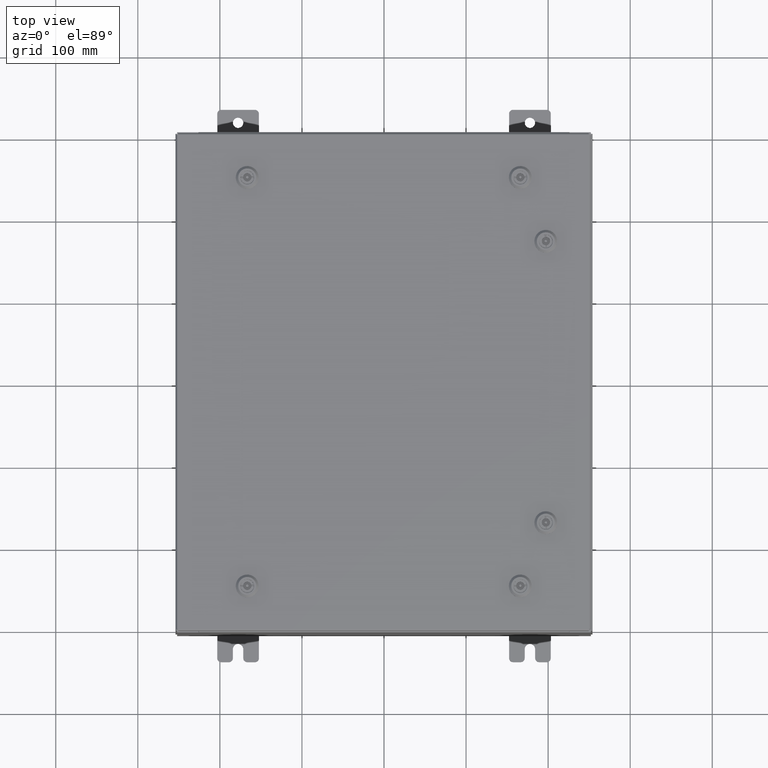
[diagram: clean part render]
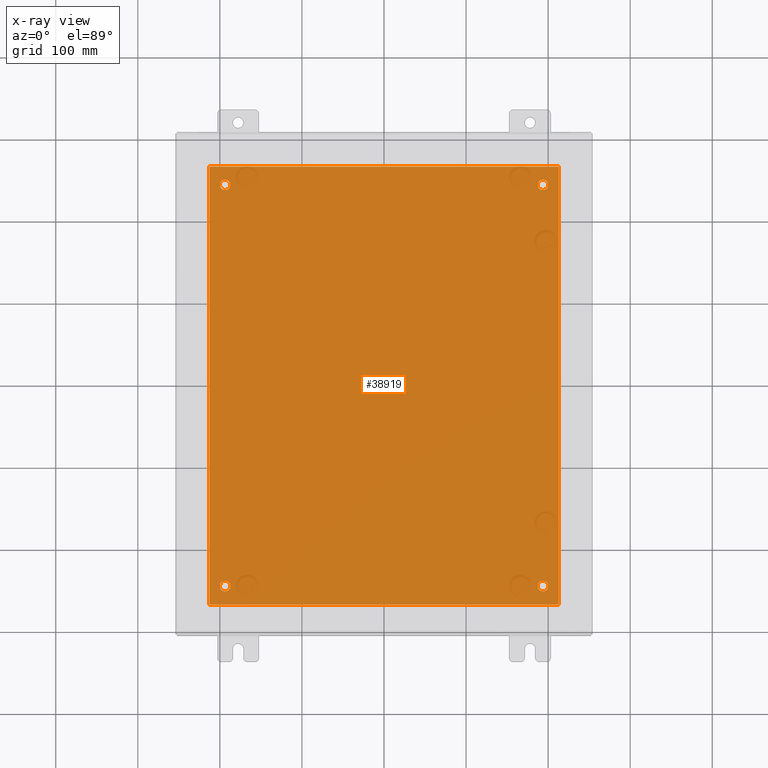
[diagram: x-ray — body ghosted, one internal face saturated and labeled with its STEP entity id]
A machine part, top view, then the same camera in x-ray: the body is ghosted and one INTERNAL B-rep face — a face not visible from any outside direction — is saturated and labeled: STEP entity #38919.
In plain terms, the highlighted planar face has unit normal (0, 0, -1).
Its self-contained STEP definition (entity closure, byte-faithful):
#570 = EDGE_CURVE ( 'NONE', #48124, #41167, #20640, .T. ) ;
#1003 = DIRECTION ( 'NONE',  ( -0.0000000000000000000, -0.0000000000000000000, 1.000000000000000000 ) ) ;
#2169 = FACE_OUTER_BOUND ( 'NONE', #4934, .T. ) ;
#2530 = CARTESIAN_POINT ( 'NONE',  ( -8.383000000000002700, 10.50000000000000200, -0.1039999999999998100 ) ) ;
#2738 = VERTEX_POINT ( 'NONE', #62818 ) ;
#3512 = AXIS2_PLACEMENT_3D ( 'NONE', #41570, #12239, #46522 ) ;
#4291 = ORIENTED_EDGE ( 'NONE', *, *, #34516, .T. ) ;
#4617 = EDGE_LOOP ( 'NONE', ( #4291, #27446 ) ) ;
#4934 = EDGE_LOOP ( 'NONE', ( #21158, #60504, #6108, #55080 ) ) ;
#5246 = EDGE_CURVE ( 'NONE', #24341, #48124, #21398, .T. ) ;
#6108 = ORIENTED_EDGE ( 'NONE', *, *, #6360, .F. ) ;
#6360 = EDGE_CURVE ( 'NONE', #41167, #14637, #47408, .T. ) ;
#6496 = CARTESIAN_POINT ( 'NONE',  ( 7.625000000000004400, -9.625000000000001800, -0.1039999999999999800 ) ) ;
#6788 = DIRECTION ( 'NONE',  ( -1.000000000000000000, 0.0000000000000000000, -0.0000000000000000000 ) ) ;
#7074 = EDGE_CURVE ( 'NONE', #2738, #55004, #7495, .T. ) ;
#7495 = CIRCLE ( 'NONE', #47217, 0.2499999999999987000 ) ;
#9644 = CARTESIAN_POINT ( 'NONE',  ( 8.382999999999999100, -10.50000000000000000, -0.1039999999999999800 ) ) ;
#10353 = CARTESIAN_POINT ( 'NONE',  ( 8.382999999999999100, -10.50000000000000200, -0.1039999999999998100 ) ) ;
#11430 = DIRECTION ( 'NONE',  ( -1.000000000000000000, 0.0000000000000000000, 0.0000000000000000000 ) ) ;
#11841 = DIRECTION ( 'NONE',  ( 0.0000000000000000000, 1.000000000000000000, 0.0000000000000000000 ) ) ;
#12239 = DIRECTION ( 'NONE',  ( -0.0000000000000000000, -0.0000000000000000000, 1.000000000000000000 ) ) ;
#12776 = EDGE_LOOP ( 'NONE', ( #35586, #22770 ) ) ;
#13023 = DIRECTION ( 'NONE',  ( -0.0000000000000000000, -0.0000000000000000000, 1.000000000000000000 ) ) ;
#14206 = CARTESIAN_POINT ( 'NONE',  ( -7.375000000000004400, -9.625000000000001800, -0.1039999999999999800 ) ) ;
#14637 = VERTEX_POINT ( 'NONE', #2530 ) ;
#14740 = VERTEX_POINT ( 'NONE', #27776 ) ;
#14816 = CARTESIAN_POINT ( 'NONE',  ( -8.500000000000001800, -10.50000000000000000, -0.1039999999999999800 ) ) ;
#15168 = FACE_BOUND ( 'NONE', #55344, .T. ) ;
#15970 = ORIENTED_EDGE ( 'NONE', *, *, #34595, .T. ) ;
#16479 = ORIENTED_EDGE ( 'NONE', *, *, #44733, .T. ) ;
#18797 = EDGE_CURVE ( 'NONE', #14637, #24341, #42804, .T. ) ;
#19184 = EDGE_CURVE ( 'NONE', #55004, #2738, #33583, .T. ) ;
#19908 = CIRCLE ( 'NONE', #54654, 0.2499999999999987000 ) ;
#20026 = CIRCLE ( 'NONE', #33436, 0.2499999999999987000 ) ;
#20640 = LINE ( 'NONE', #10353, #45185 ) ;
#21158 = ORIENTED_EDGE ( 'NONE', *, *, #5246, .F. ) ;
#21398 = LINE ( 'NONE', #14816, #32893 ) ;
#22470 = CIRCLE ( 'NONE', #37826, 0.2499999999999998100 ) ;
#22624 = VERTEX_POINT ( 'NONE', #14206 ) ;
#22682 = CARTESIAN_POINT ( 'NONE',  ( -7.875000000000003600, 9.625000000000001800, -0.1039999999999999800 ) ) ;
#22770 = ORIENTED_EDGE ( 'NONE', *, *, #61257, .T. ) ;
#24341 = VERTEX_POINT ( 'NONE', #27346 ) ;
#25211 = CARTESIAN_POINT ( 'NONE',  ( -7.375000000000004400, 9.625000000000001800, -0.1039999999999999800 ) ) ;
#26047 = CARTESIAN_POINT ( 'NONE',  ( -7.625000000000004400, 9.625000000000001800, -0.1039999999999999800 ) ) ;
#26291 = PLANE ( 'NONE',  #48380 ) ;
#26429 = VERTEX_POINT ( 'NONE', #29640 ) ;
#26784 = CARTESIAN_POINT ( 'NONE',  ( -7.625000000000004400, 9.625000000000001800, -0.1039999999999999800 ) ) ;
#27346 = CARTESIAN_POINT ( 'NONE',  ( -8.383000000000002700, -10.50000000000000000, -0.1039999999999998100 ) ) ;
#27446 = ORIENTED_EDGE ( 'NONE', *, *, #30785, .T. ) ;
#27776 = CARTESIAN_POINT ( 'NONE',  ( 7.375000000000005300, -9.625000000000001800, -0.1039999999999999800 ) ) ;
#27857 = CARTESIAN_POINT ( 'NONE',  ( 7.625000000000004400, 9.625000000000001800, -0.1039999999999999800 ) ) ;
#28047 = ORIENTED_EDGE ( 'NONE', *, *, #7074, .T. ) ;
#28189 = FACE_BOUND ( 'NONE', #4617, .T. ) ;
#28563 = CARTESIAN_POINT ( 'NONE',  ( -7.625000000000004400, -9.625000000000001800, -0.1039999999999999800 ) ) ;
#29163 = CARTESIAN_POINT ( 'NONE',  ( -8.383000000000002700, 10.50000000000000400, -0.1039999999999998100 ) ) ;
#29338 = VERTEX_POINT ( 'NONE', #25211 ) ;
#29640 = CARTESIAN_POINT ( 'NONE',  ( -7.875000000000003600, -9.625000000000001800, -0.1039999999999999800 ) ) ;
#29742 = FACE_BOUND ( 'NONE', #36532, .T. ) ;
#30323 = CARTESIAN_POINT ( 'NONE',  ( 7.625000000000004400, -9.625000000000001800, -0.1039999999999999800 ) ) ;
#30721 = CARTESIAN_POINT ( 'NONE',  ( 7.875000000000002700, -9.625000000000001800, -0.1039999999999999800 ) ) ;
#30785 = EDGE_CURVE ( 'NONE', #14740, #52762, #19908, .T. ) ;
#30976 = DIRECTION ( 'NONE',  ( -1.000000000000000000, 0.0000000000000000000, 0.0000000000000000000 ) ) ;
#31216 = CARTESIAN_POINT ( 'NONE',  ( 0.0000000000000000000, 0.0000000000000000000, -0.1039999999999999800 ) ) ;
#31704 = DIRECTION ( 'NONE',  ( -1.000000000000000000, 0.0000000000000000000, 0.0000000000000000000 ) ) ;
#32806 = DIRECTION ( 'NONE',  ( -1.000000000000000000, 0.0000000000000000000, 0.0000000000000000000 ) ) ;
#32893 = VECTOR ( 'NONE', #49133, 39.37007874015748100 ) ;
#33436 = AXIS2_PLACEMENT_3D ( 'NONE', #30323, #1003, #35280 ) ;
#33491 = DIRECTION ( 'NONE',  ( -1.000000000000000000, 0.0000000000000000000, 0.0000000000000000000 ) ) ;
#33583 = CIRCLE ( 'NONE', #50913, 0.2499999999999987000 ) ;
#34516 = EDGE_CURVE ( 'NONE', #52762, #14740, #20026, .T. ) ;
#34595 = EDGE_CURVE ( 'NONE', #53281, #29338, #42999, .T. ) ;
#35280 = DIRECTION ( 'NONE',  ( -1.000000000000000000, 0.0000000000000000000, 0.0000000000000000000 ) ) ;
#35431 = CARTESIAN_POINT ( 'NONE',  ( 7.375000000000005300, 9.625000000000001800, -0.1039999999999999800 ) ) ;
#35586 = ORIENTED_EDGE ( 'NONE', *, *, #44399, .T. ) ;
#36151 = DIRECTION ( 'NONE',  ( 0.0000000000000000000, 0.0000000000000000000, -1.000000000000000000 ) ) ;
#36532 = EDGE_LOOP ( 'NONE', ( #28047, #36951 ) ) ;
#36951 = ORIENTED_EDGE ( 'NONE', *, *, #19184, .T. ) ;
#37826 = AXIS2_PLACEMENT_3D ( 'NONE', #28563, #62892, #33491 ) ;
#38919 = ADVANCED_FACE ( 'NONE', ( #54307, #28189, #29742, #15168, #2169 ), #26291, .T. ) ;
#40778 = DIRECTION ( 'NONE',  ( -0.0000000000000000000, -0.0000000000000000000, 1.000000000000000000 ) ) ;
#41167 = VERTEX_POINT ( 'NONE', #49391 ) ;
#41570 = CARTESIAN_POINT ( 'NONE',  ( -7.625000000000004400, -9.625000000000001800, -0.1039999999999999800 ) ) ;
#41640 = DIRECTION ( 'NONE',  ( -1.000000000000000000, -0.0000000000000000000, -0.0000000000000000000 ) ) ;
#42377 = CARTESIAN_POINT ( 'NONE',  ( 7.625000000000004400, 9.625000000000001800, -0.1039999999999999800 ) ) ;
#42804 = LINE ( 'NONE', #29163, #52776 ) ;
#42999 = CIRCLE ( 'NONE', #56485, 0.2499999999999998100 ) ;
#43181 = AXIS2_PLACEMENT_3D ( 'NONE', #26784, #61064, #31704 ) ;
#44399 = EDGE_CURVE ( 'NONE', #22624, #26429, #22470, .T. ) ;
#44733 = EDGE_CURVE ( 'NONE', #29338, #53281, #58624, .T. ) ;
#45185 = VECTOR ( 'NONE', #11841, 39.37007874015748100 ) ;
#46522 = DIRECTION ( 'NONE',  ( -1.000000000000000000, 0.0000000000000000000, 0.0000000000000000000 ) ) ;
#47217 = AXIS2_PLACEMENT_3D ( 'NONE', #27857, #62185, #32806 ) ;
#47326 = DIRECTION ( 'NONE',  ( -1.000000000000000000, 0.0000000000000000000, 0.0000000000000000000 ) ) ;
#47408 = LINE ( 'NONE', #56482, #58939 ) ;
#48124 = VERTEX_POINT ( 'NONE', #9644 ) ;
#48380 = AXIS2_PLACEMENT_3D ( 'NONE', #31216, #36151, #6788 ) ;
#49133 = DIRECTION ( 'NONE',  ( 1.000000000000000000, 0.0000000000000000000, 0.0000000000000000000 ) ) ;
#49391 = CARTESIAN_POINT ( 'NONE',  ( 8.382999999999999100, 10.50000000000000200, -0.1039999999999999800 ) ) ;
#50913 = AXIS2_PLACEMENT_3D ( 'NONE', #42377, #13023, #47326 ) ;
#52762 = VERTEX_POINT ( 'NONE', #30721 ) ;
#52776 = VECTOR ( 'NONE', #53624, 39.37007874015748100 ) ;
#53281 = VERTEX_POINT ( 'NONE', #22682 ) ;
#53624 = DIRECTION ( 'NONE',  ( 0.0000000000000000000, -1.000000000000000000, 0.0000000000000000000 ) ) ;
#54307 = FACE_BOUND ( 'NONE', #12776, .T. ) ;
#54654 = AXIS2_PLACEMENT_3D ( 'NONE', #6496, #40778, #11430 ) ;
#55004 = VERTEX_POINT ( 'NONE', #35431 ) ;
#55080 = ORIENTED_EDGE ( 'NONE', *, *, #570, .F. ) ;
#55344 = EDGE_LOOP ( 'NONE', ( #16479, #15970 ) ) ;
#56482 = CARTESIAN_POINT ( 'NONE',  ( -8.500000000000001800, 10.50000000000000200, -0.1039999999999999800 ) ) ;
#56485 = AXIS2_PLACEMENT_3D ( 'NONE', #26047, #60340, #30976 ) ;
#58624 = CIRCLE ( 'NONE', #43181, 0.2499999999999998100 ) ;
#58939 = VECTOR ( 'NONE', #41640, 39.37007874015748100 ) ;
#59258 = CIRCLE ( 'NONE', #3512, 0.2499999999999998100 ) ;
#60340 = DIRECTION ( 'NONE',  ( -0.0000000000000000000, -0.0000000000000000000, 1.000000000000000000 ) ) ;
#60504 = ORIENTED_EDGE ( 'NONE', *, *, #18797, .F. ) ;
#61064 = DIRECTION ( 'NONE',  ( -0.0000000000000000000, -0.0000000000000000000, 1.000000000000000000 ) ) ;
#61257 = EDGE_CURVE ( 'NONE', #26429, #22624, #59258, .T. ) ;
#62185 = DIRECTION ( 'NONE',  ( -0.0000000000000000000, -0.0000000000000000000, 1.000000000000000000 ) ) ;
#62818 = CARTESIAN_POINT ( 'NONE',  ( 7.875000000000002700, 9.625000000000001800, -0.1039999999999999800 ) ) ;
#62892 = DIRECTION ( 'NONE',  ( -0.0000000000000000000, -0.0000000000000000000, 1.000000000000000000 ) ) ;